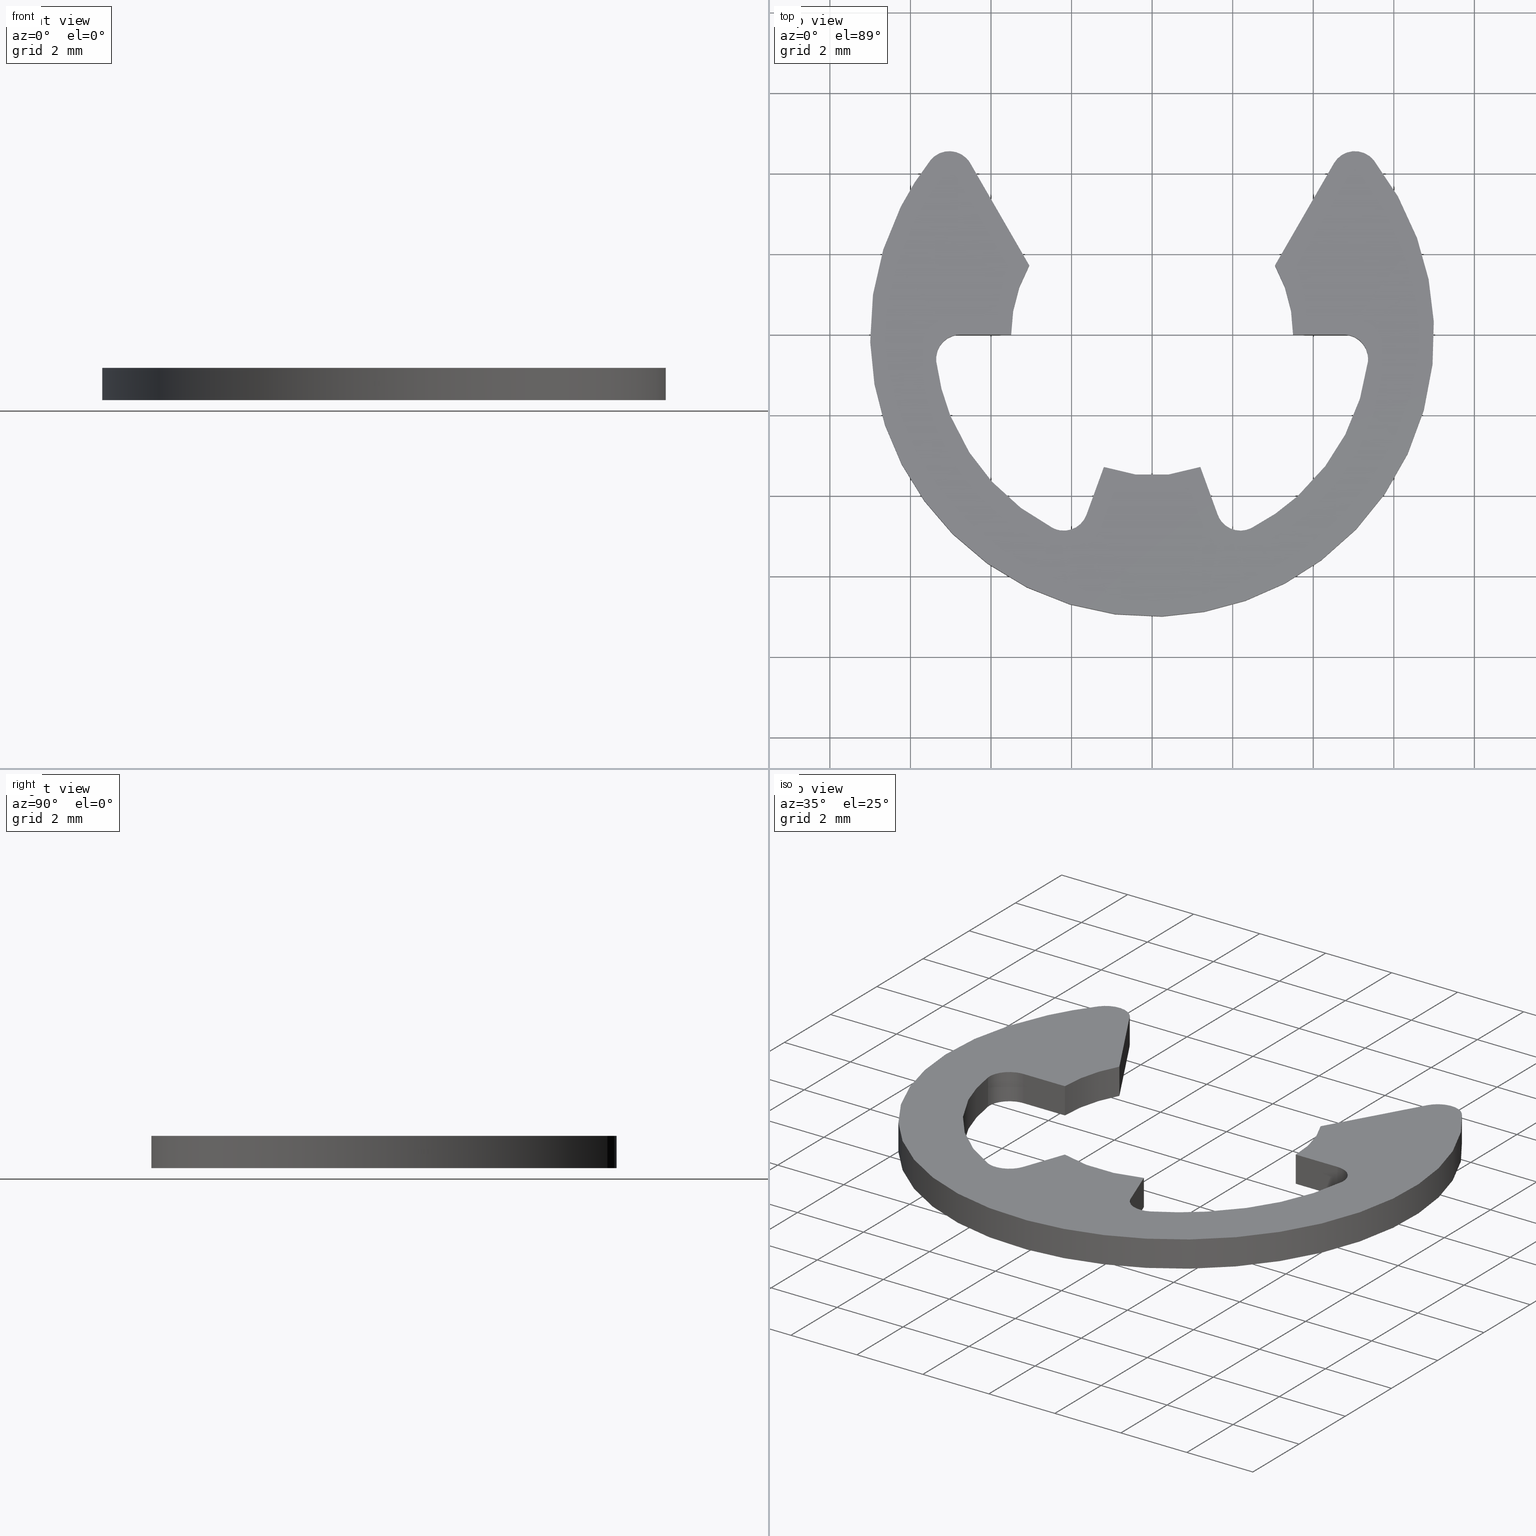
[diagram: canonical four-view strip — front | top / right | iso, engineering-drawing reading convention]
A machine part, canonical four-view strip (front | top / right | iso — engineering-drawing reading convention). The complete STEP part file that produces these views, byte-faithful:
ISO-10303-21;
HEADER;
/****************************************************************
 * Generated by software with PDE/Lib inside                    *
 * PDElib Version 4.4.1-0003, patched  Thursday August 19 11:58 *
 * International Technegroup Inc. (www.iti-oh.com)              *
 ****************************************************************/
FILE_DESCRIPTION((''),'2;1');
FILE_NAME('','2005-04-20T08:53:21',(''),(''),'','CADfix','');
FILE_SCHEMA(('AUTOMOTIVE_DESIGN'));
ENDSEC;
DATA;
#5=APPLICATION_CONTEXT('automotive design');
#6=APPLICATION_PROTOCOL_DEFINITION('Draft International Standard','automotive_design',1998,#5);
#7=PRODUCT_CONTEXT('None',#5,'mechanical');
#8=PRODUCT('retainer','','None',(#7));
#9=PRODUCT_RELATED_PRODUCT_CATEGORY('part','description',(#8));
#10=PRODUCT_DEFINITION_FORMATION('None','None',#8);
#11=PRODUCT_DEFINITION_CONTEXT('part definition',#5,'design');
#12=PRODUCT_DEFINITION('None','None',#10,#11);
#18=(NAMED_UNIT(*)PLANE_ANGLE_UNIT()SI_UNIT($,.RADIAN.));
#19=DIMENSIONAL_EXPONENTS(0.0,0.0,0.0,0.0,0.0,0.0,0.0);
#20=PLANE_ANGLE_MEASURE_WITH_UNIT(PLANE_ANGLE_MEASURE(0.017453292500000),#18);
#24=(CONVERSION_BASED_UNIT('DEGREE',#20)NAMED_UNIT(#19)PLANE_ANGLE_UNIT());
#28=(NAMED_UNIT(*)SI_UNIT($,.STERADIAN.)SOLID_ANGLE_UNIT());
#32=(LENGTH_UNIT()NAMED_UNIT(*)SI_UNIT(.MILLI.,.METRE.));
#34=UNCERTAINTY_MEASURE_WITH_UNIT(LENGTH_MEASURE(0.001000000000000),#32,'DISTANCE_ACCURACY_VALUE','');
#36=(GEOMETRIC_REPRESENTATION_CONTEXT(3)GLOBAL_UNCERTAINTY_ASSIGNED_CONTEXT((#34))GLOBAL_UNIT_ASSIGNED_CONTEXT((#24,#28,#32))REPRESENTATION_CONTEXT('None','None'));
#37=AXIS2_PLACEMENT_3D('',#38,#39,#40);
#38=CARTESIAN_POINT('',(0.0,0.0,0.0));
#39=DIRECTION('',(0.0,0.0,1.0));
#40=DIRECTION('',(1.0,0.0,0.0));
#41=ADVANCED_BREP_SHAPE_REPRESENTATION('',(#37,#941),#36);
#42=PRODUCT_DEFINITION_SHAPE('','',#12);
#43=SHAPE_DEFINITION_REPRESENTATION(#42,#41);
#44=CARTESIAN_POINT('',(-7.680830195951259,-7.577049522920409,0.0));
#45=CARTESIAN_POINT('',(7.680830192763075,-7.577049522920409,0.0));
#46=CARTESIAN_POINT('',(-7.680830195951259,5.129593282450013,0.0));
#47=CARTESIAN_POINT('',(7.680830192763075,5.129593282450013,0.0));
#48=B_SPLINE_SURFACE_WITH_KNOTS('',1,1,((#44,#46),(#45,#47)),.UNSPECIFIED.,.F.,.F.,.U.,(2,2),(2,2),(0.0,15.361660388714339),(0.0,12.706642805370420),.UNSPECIFIED.);
#49=CARTESIAN_POINT('',(-5.505520051458170,4.323106401997531,0.0));
#50=VERTEX_POINT('',#49);
#51=CARTESIAN_POINT('',(-4.514004000000000,4.252556000000000,0.0));
#52=VERTEX_POINT('',#51);
#53=CARTESIAN_POINT('',(-5.505520051458169,4.323106401997530,0.0));
#54=CARTESIAN_POINT('',(-5.308784917364946,4.573650599816963,0.0));
#55=CARTESIAN_POINT('',(-4.991033556247954,4.551041297396017,0.0));
#56=CARTESIAN_POINT('',(-4.673282195130962,4.528431994975072,0.0));
#57=CARTESIAN_POINT('',(-4.514004000000000,4.252556000000000,0.0));
#65=(BOUNDED_CURVE()B_SPLINE_CURVE(2,(#53,#54,#55,#56,#57),.UNSPECIFIED.,.F.,.U.)B_SPLINE_CURVE_WITH_KNOTS((3,2,3),(0.0,0.500000000000000,1.0),.UNSPECIFIED.)CURVE()GEOMETRIC_REPRESENTATION_ITEM()RATIONAL_B_SPLINE_CURVE((1.0,0.883234793916496,1.0,0.883234793916496,1.0))REPRESENTATION_ITEM(''));
#66=EDGE_CURVE('',#50,#52,#65,.T.);
#67=ORIENTED_EDGE('',*,*,#66,.T.);
#68=CARTESIAN_POINT('',(-3.050001544194635,1.716825728025515,0.0));
#69=VERTEX_POINT('',#68);
#70=CARTESIAN_POINT('',(-3.050001544194635,1.716825728025515,0.0));
#71=CARTESIAN_POINT('',(-4.514004000000000,4.252556000000000,0.0));
#72=QUASI_UNIFORM_CURVE('',1,(#70,#71),.UNSPECIFIED.,.F.,.U.);
#73=EDGE_CURVE('',#69,#52,#72,.T.);
#74=ORIENTED_EDGE('',*,*,#73,.F.);
#75=CARTESIAN_POINT('',(-3.500000000000000,0.0,0.0));
#76=VERTEX_POINT('',#75);
#77=CARTESIAN_POINT('',(-3.500000000000000,0.0,0.0));
#78=CARTESIAN_POINT('',(-3.500000000000000,0.917387577322797,0.0));
#79=CARTESIAN_POINT('',(-3.050001544194636,1.716825728025514,0.0));
#87=(BOUNDED_CURVE()B_SPLINE_CURVE(2,(#77,#78,#79),.UNSPECIFIED.,.F.,.U.)CURVE()GEOMETRIC_REPRESENTATION_ITEM()QUASI_UNIFORM_CURVE()RATIONAL_B_SPLINE_CURVE((1.0,0.967323372153035,1.0))REPRESENTATION_ITEM(''));
#88=EDGE_CURVE('',#76,#69,#87,.T.);
#89=ORIENTED_EDGE('',*,*,#88,.F.);
#90=CARTESIAN_POINT('',(-4.762352359916260,0.0,0.0));
#91=VERTEX_POINT('',#90);
#92=CARTESIAN_POINT('',(-4.762352359916260,0.0,0.0));
#93=CARTESIAN_POINT('',(-3.500000000000000,0.0,0.0));
#94=QUASI_UNIFORM_CURVE('',1,(#92,#93),.UNSPECIFIED.,.F.,.U.);
#95=EDGE_CURVE('',#91,#76,#94,.T.);
#96=ORIENTED_EDGE('',*,*,#95,.F.);
#97=CARTESIAN_POINT('',(-5.357646404905800,-0.675000000000000,0.0));
#98=VERTEX_POINT('',#97);
#99=CARTESIAN_POINT('',(-5.357646404905792,-0.674999999999999,0.0));
#100=CARTESIAN_POINT('',(-5.391502622129178,-0.406274606680622,0.0));
#101=CARTESIAN_POINT('',(-5.212352359916260,-0.203137303340311,0.0));
#102=CARTESIAN_POINT('',(-5.033202097703342,0.0,0.0));
#103=CARTESIAN_POINT('',(-4.762352359916260,0.0,0.0));
#111=(BOUNDED_CURVE()B_SPLINE_CURVE(2,(#99,#100,#101,#102,#103),.UNSPECIFIED.,.F.,.U.)B_SPLINE_CURVE_WITH_KNOTS((3,2,3),(0.0,0.500000000000000,1.0),.UNSPECIFIED.)CURVE()GEOMETRIC_REPRESENTATION_ITEM()RATIONAL_B_SPLINE_CURVE((1.0,0.911437827766148,1.0,0.911437827766148,1.0))REPRESENTATION_ITEM(''));
#112=EDGE_CURVE('',#98,#91,#111,.T.);
#113=ORIENTED_EDGE('',*,*,#112,.F.);
#114=CARTESIAN_POINT('',(-2.466716259072880,-4.803676810238750,0.0));
#115=VERTEX_POINT('',#114);
#116=CARTESIAN_POINT('',(-2.466716259072878,-4.803676810238748,0.0));
#117=CARTESIAN_POINT('',(-5.001469554906101,-3.502066103572656,0.0));
#118=CARTESIAN_POINT('',(-5.357646404905796,-0.674999999999999,0.0));
#126=(BOUNDED_CURVE()B_SPLINE_CURVE(2,(#116,#117,#118),.UNSPECIFIED.,.F.,.U.)CURVE()GEOMETRIC_REPRESENTATION_ITEM()QUASI_UNIFORM_CURVE()RATIONAL_B_SPLINE_CURVE((1.0,0.884424314091896,1.0))REPRESENTATION_ITEM(''));
#127=EDGE_CURVE('',#115,#98,#126,.T.);
#128=ORIENTED_EDGE('',*,*,#127,.F.);
#129=CARTESIAN_POINT('',(-1.628820000000000,-4.475144000000000,0.0));
#130=VERTEX_POINT('',#129);
#131=CARTESIAN_POINT('',(-1.628820000000000,-4.475144000000000,0.0));
#132=CARTESIAN_POINT('',(-1.721455040402783,-4.729660935348904,0.0));
#133=CARTESIAN_POINT('',(-1.973615335047506,-4.828531087035394,0.0));
#134=CARTESIAN_POINT('',(-2.225775629692229,-4.927401238721886,0.0));
#135=CARTESIAN_POINT('',(-2.466716259072879,-4.803676810238747,0.0));
#143=(BOUNDED_CURVE()B_SPLINE_CURVE(2,(#131,#132,#133,#134,#135),.UNSPECIFIED.,.F.,.U.)B_SPLINE_CURVE_WITH_KNOTS((3,2,3),(0.0,0.500000000000000,1.0),.UNSPECIFIED.)CURVE()GEOMETRIC_REPRESENTATION_ITEM()RATIONAL_B_SPLINE_CURVE((1.0,0.911437259242175,1.0,0.911437259242175,1.0))REPRESENTATION_ITEM(''));
#144=EDGE_CURVE('',#130,#115,#143,.T.);
#145=ORIENTED_EDGE('',*,*,#144,.F.);
#146=CARTESIAN_POINT('',(-1.197072395923980,-3.288923483287020,0.0));
#147=VERTEX_POINT('',#146);
#148=CARTESIAN_POINT('',(-1.197072395923980,-3.288923483287020,0.0));
#149=CARTESIAN_POINT('',(-1.628820000000000,-4.475144000000000,0.0));
#150=QUASI_UNIFORM_CURVE('',1,(#148,#149),.UNSPECIFIED.,.F.,.U.);
#151=EDGE_CURVE('',#147,#130,#150,.T.);
#152=ORIENTED_EDGE('',*,*,#151,.F.);
#153=CARTESIAN_POINT('',(1.197069000000000,-3.288924999999810,0.0));
#154=VERTEX_POINT('',#153);
#155=CARTESIAN_POINT('',(1.197069000000000,-3.288924999999810,0.0));
#156=CARTESIAN_POINT('',(-0.000001973981110,-3.724622265994098,0.0));
#157=CARTESIAN_POINT('',(-1.197072395923980,-3.288923483287019,0.0));
#165=(BOUNDED_CURVE()B_SPLINE_CURVE(2,(#155,#156,#157),.UNSPECIFIED.,.F.,.U.)CURVE()GEOMETRIC_REPRESENTATION_ITEM()QUASI_UNIFORM_CURVE()RATIONAL_B_SPLINE_CURVE((1.0,0.939692605060815,1.0))REPRESENTATION_ITEM(''));
#166=EDGE_CURVE('',#154,#147,#165,.T.);
#167=ORIENTED_EDGE('',*,*,#166,.F.);
#168=CARTESIAN_POINT('',(1.628819395293825,-4.475147997431360,0.0));
#169=VERTEX_POINT('',#168);
#170=CARTESIAN_POINT('',(1.628819395293825,-4.475147997431360,0.0));
#171=CARTESIAN_POINT('',(1.197069000000000,-3.288924999999810,0.0));
#172=QUASI_UNIFORM_CURVE('',1,(#170,#171),.UNSPECIFIED.,.F.,.U.);
#173=EDGE_CURVE('',#169,#154,#172,.T.);
#174=ORIENTED_EDGE('',*,*,#173,.F.);
#175=CARTESIAN_POINT('',(2.466713181127335,-4.803678390780620,0.0));
#176=VERTEX_POINT('',#175);
#177=CARTESIAN_POINT('',(2.466713181127335,-4.803678390780620,0.0));
#178=CARTESIAN_POINT('',(2.225773561045906,-4.927401743901641,0.0));
#179=CARTESIAN_POINT('',(1.973614424377073,-4.828532444182820,0.0));
#180=CARTESIAN_POINT('',(1.721455287708239,-4.729663144464000,0.0));
#181=CARTESIAN_POINT('',(1.628819395293824,-4.475147997431360,0.0));
#189=(BOUNDED_CURVE()B_SPLINE_CURVE(2,(#177,#178,#179,#180,#181),.UNSPECIFIED.,.F.,.U.)B_SPLINE_CURVE_WITH_KNOTS((3,2,3),(0.0,0.500000000000000,1.0),.UNSPECIFIED.)CURVE()GEOMETRIC_REPRESENTATION_ITEM()RATIONAL_B_SPLINE_CURVE((1.0,0.911438050522378,1.0,0.911438050522378,1.0))REPRESENTATION_ITEM(''));
#190=EDGE_CURVE('',#176,#169,#189,.T.);
#191=ORIENTED_EDGE('',*,*,#190,.F.);
#192=CARTESIAN_POINT('',(5.357645964854310,-0.674999636050790,0.0));
#193=VERTEX_POINT('',#192);
#194=CARTESIAN_POINT('',(5.357645964854310,-0.674999636050790,0.0));
#195=CARTESIAN_POINT('',(5.001469452492112,-3.502068208566773,0.0));
#196=CARTESIAN_POINT('',(2.466713181127333,-4.803678390780618,0.0));
#204=(BOUNDED_CURVE()B_SPLINE_CURVE(2,(#194,#195,#196),.UNSPECIFIED.,.F.,.U.)CURVE()GEOMETRIC_REPRESENTATION_ITEM()QUASI_UNIFORM_CURVE()RATIONAL_B_SPLINE_CURVE((1.0,0.884424151352078,1.0))REPRESENTATION_ITEM(''));
#205=EDGE_CURVE('',#193,#176,#204,.T.);
#206=ORIENTED_EDGE('',*,*,#205,.F.);
#207=CARTESIAN_POINT('',(4.762352000000000,0.0,0.0));
#208=VERTEX_POINT('',#207);
#209=CARTESIAN_POINT('',(4.762352000000000,0.0,0.0));
#210=CARTESIAN_POINT('',(5.033201930716102,0.000000199055792,0.0));
#211=CARTESIAN_POINT('',(5.212352212016909,-0.203137043744975,0.0));
#212=CARTESIAN_POINT('',(5.391502493317716,-0.406274286545742,0.0));
#213=CARTESIAN_POINT('',(5.357645964854310,-0.674999636050790,0.0));
#221=(BOUNDED_CURVE()B_SPLINE_CURVE(2,(#209,#210,#211,#212,#213),.UNSPECIFIED.,.F.,.U.)B_SPLINE_CURVE_WITH_KNOTS((3,2,3),(0.0,0.500000000000000,1.0),.UNSPECIFIED.)CURVE()GEOMETRIC_REPRESENTATION_ITEM()RATIONAL_B_SPLINE_CURVE((1.0,0.911437717864374,1.0,0.911437717864374,1.0))REPRESENTATION_ITEM(''));
#222=EDGE_CURVE('',#208,#193,#221,.T.);
#223=ORIENTED_EDGE('',*,*,#222,.F.);
#224=CARTESIAN_POINT('',(3.500000000000000,8.572244E-016,0.0));
#225=VERTEX_POINT('',#224);
#226=CARTESIAN_POINT('',(3.500000000000000,8.572244E-016,0.0));
#227=CARTESIAN_POINT('',(4.762352000000000,0.0,0.0));
#228=QUASI_UNIFORM_CURVE('',1,(#226,#227),.UNSPECIFIED.,.F.,.U.);
#229=EDGE_CURVE('',#225,#208,#228,.T.);
#230=ORIENTED_EDGE('',*,*,#229,.F.);
#231=CARTESIAN_POINT('',(3.049997000000000,1.716827000000195,0.0));
#232=VERTEX_POINT('',#231);
#233=CARTESIAN_POINT('',(3.049997000000000,1.716827000000195,0.0));
#234=CARTESIAN_POINT('',(3.499998546452678,0.917388542506622,0.0));
#235=CARTESIAN_POINT('',(3.500000000000000,8.572244E-016,0.0));
#243=(BOUNDED_CURVE()B_SPLINE_CURVE(2,(#233,#234,#235),.UNSPECIFIED.,.F.,.U.)CURVE()GEOMETRIC_REPRESENTATION_ITEM()QUASI_UNIFORM_CURVE()RATIONAL_B_SPLINE_CURVE((1.0,0.967323251267172,1.0))REPRESENTATION_ITEM(''));
#244=EDGE_CURVE('',#232,#225,#243,.T.);
#245=ORIENTED_EDGE('',*,*,#244,.F.);
#246=CARTESIAN_POINT('',(4.514004202788870,4.252553770864495,0.0));
#247=VERTEX_POINT('',#246);
#248=CARTESIAN_POINT('',(4.514004202788870,4.252553770864495,0.0));
#249=CARTESIAN_POINT('',(3.049997000000000,1.716827000000195,0.0));
#250=QUASI_UNIFORM_CURVE('',1,(#248,#249),.UNSPECIFIED.,.F.,.U.);
#251=EDGE_CURVE('',#247,#232,#250,.T.);
#252=ORIENTED_EDGE('',*,*,#251,.F.);
#253=CARTESIAN_POINT('',(5.505519803872589,4.323106717300275,0.0));
#254=VERTEX_POINT('',#253);
#255=CARTESIAN_POINT('',(4.514004202788867,4.252553770864496,0.0));
#256=CARTESIAN_POINT('',(4.673281809844327,4.528429733622624,0.0));
#257=CARTESIAN_POINT('',(4.991032795902336,4.551039771132551,0.0));
#258=CARTESIAN_POINT('',(5.308783781960344,4.573649808642479,0.0));
#259=CARTESIAN_POINT('',(5.505519803872589,4.323106717300275,0.0));
#267=(BOUNDED_CURVE()B_SPLINE_CURVE(2,(#255,#256,#257,#258,#259),.UNSPECIFIED.,.F.,.U.)B_SPLINE_CURVE_WITH_KNOTS((3,2,3),(0.0,0.500000000000000,1.0),.UNSPECIFIED.)CURVE()GEOMETRIC_REPRESENTATION_ITEM()RATIONAL_B_SPLINE_CURVE((1.0,0.883234990200231,1.0,0.883234990200231,1.0))REPRESENTATION_ITEM(''));
#268=EDGE_CURVE('',#247,#254,#267,.T.);
#269=ORIENTED_EDGE('',*,*,#268,.T.);
#270=CARTESIAN_POINT('',(5.505519803872588,4.323106717300274,0.0));
#271=CARTESIAN_POINT('',(9.496636180435846,-0.759620054814019,0.0));
#272=CARTESIAN_POINT('',(4.748318226620992,-5.143294082466886,0.0));
#273=CARTESIAN_POINT('',(0.000000272806137,-9.526968110119752,0.0));
#274=CARTESIAN_POINT('',(-4.748317932063014,-5.143294354404462,0.0));
#275=CARTESIAN_POINT('',(-9.496636136932169,-0.759620598689168,0.0));
#276=CARTESIAN_POINT('',(-5.505520051458172,4.323106401997528,0.0));
#284=(BOUNDED_CURVE()B_SPLINE_CURVE(2,(#270,#271,#272,#273,#274,#275,#276),.UNSPECIFIED.,.F.,.U.)B_SPLINE_CURVE_WITH_KNOTS((3,2,2,3),(0.0,0.333333333333333,0.666666666666667,1.0),.UNSPECIFIED.)CURVE()GEOMETRIC_REPRESENTATION_ITEM()RATIONAL_B_SPLINE_CURVE((1.0,0.734756316919382,1.0,0.734756316919382,1.0,0.734756316919382,1.0))REPRESENTATION_ITEM(''));
#285=EDGE_CURVE('',#254,#50,#284,.T.);
#286=ORIENTED_EDGE('',*,*,#285,.T.);
#287=EDGE_LOOP('',(#67,#74,#89,#96,#113,#128,#145,#152,#167,#174,#191,#206,#223,#230,#245,#252,#269,#286));
#288=FACE_OUTER_BOUND('',#287,.T.);
#289=ADVANCED_FACE('',(#288),#48,.F.);
#290=CARTESIAN_POINT('',(-7.680830195951259,-7.577049522920409,0.799988000000099));
#291=CARTESIAN_POINT('',(7.680830192763075,-7.577049522920409,0.799988000000099));
#292=CARTESIAN_POINT('',(-7.680830195951259,5.129593282450013,0.799988000000099));
#293=CARTESIAN_POINT('',(7.680830192763075,5.129593282450013,0.799988000000099));
#294=B_SPLINE_SURFACE_WITH_KNOTS('',1,1,((#290,#292),(#291,#293)),.UNSPECIFIED.,.F.,.F.,.U.,(2,2),(2,2),(0.0,15.361660388714339),(0.0,12.706642805370420),.UNSPECIFIED.);
#295=CARTESIAN_POINT('',(-5.505520051458170,4.323106401997531,0.799988000000140));
#296=VERTEX_POINT('',#295);
#297=CARTESIAN_POINT('',(-4.514004000000000,4.252556000000000,0.799988000000140));
#298=VERTEX_POINT('',#297);
#299=CARTESIAN_POINT('',(-5.505520051458169,4.323106401997530,0.799988000000140));
#300=CARTESIAN_POINT('',(-5.308784917364946,4.573650599816963,0.799988000000140));
#301=CARTESIAN_POINT('',(-4.991033556247954,4.551041297396017,0.799988000000140));
#302=CARTESIAN_POINT('',(-4.673282195130962,4.528431994975072,0.799988000000140));
#303=CARTESIAN_POINT('',(-4.514004000000000,4.252556000000000,0.799988000000140));
#311=(BOUNDED_CURVE()B_SPLINE_CURVE(2,(#299,#300,#301,#302,#303),.UNSPECIFIED.,.F.,.U.)B_SPLINE_CURVE_WITH_KNOTS((3,2,3),(0.0,0.500000000000000,1.0),.UNSPECIFIED.)CURVE()GEOMETRIC_REPRESENTATION_ITEM()RATIONAL_B_SPLINE_CURVE((1.0,0.883234793916496,1.0,0.883234793916496,1.0))REPRESENTATION_ITEM(''));
#312=EDGE_CURVE('',#296,#298,#311,.T.);
#313=ORIENTED_EDGE('',*,*,#312,.F.);
#314=CARTESIAN_POINT('',(5.505519803872589,4.323106717300275,0.799988000000140));
#315=VERTEX_POINT('',#314);
#316=CARTESIAN_POINT('',(5.505519803872588,4.323106717300274,0.799988000000140));
#317=CARTESIAN_POINT('',(9.496636180435846,-0.759620054814019,0.799988000000140));
#318=CARTESIAN_POINT('',(4.748318226620992,-5.143294082466886,0.799988000000140));
#319=CARTESIAN_POINT('',(0.000000272806137,-9.526968110119752,0.799988000000140));
#320=CARTESIAN_POINT('',(-4.748317932063014,-5.143294354404462,0.799988000000140));
#321=CARTESIAN_POINT('',(-9.496636136932169,-0.759620598689168,0.799988000000140));
#322=CARTESIAN_POINT('',(-5.505520051458172,4.323106401997528,0.799988000000140));
#330=(BOUNDED_CURVE()B_SPLINE_CURVE(2,(#316,#317,#318,#319,#320,#321,#322),.UNSPECIFIED.,.F.,.U.)B_SPLINE_CURVE_WITH_KNOTS((3,2,2,3),(0.0,0.333333333333333,0.666666666666667,1.0),.UNSPECIFIED.)CURVE()GEOMETRIC_REPRESENTATION_ITEM()RATIONAL_B_SPLINE_CURVE((1.0,0.734756316919382,1.0,0.734756316919382,1.0,0.734756316919382,1.0))REPRESENTATION_ITEM(''));
#331=EDGE_CURVE('',#315,#296,#330,.T.);
#332=ORIENTED_EDGE('',*,*,#331,.F.);
#333=CARTESIAN_POINT('',(4.514004202788870,4.252553770864495,0.799988000000140));
#334=VERTEX_POINT('',#333);
#335=CARTESIAN_POINT('',(4.514004202788867,4.252553770864496,0.799988000000140));
#336=CARTESIAN_POINT('',(4.673281809844327,4.528429733622624,0.799988000000140));
#337=CARTESIAN_POINT('',(4.991032795902336,4.551039771132551,0.799988000000140));
#338=CARTESIAN_POINT('',(5.308783781960344,4.573649808642479,0.799988000000140));
#339=CARTESIAN_POINT('',(5.505519803872589,4.323106717300275,0.799988000000140));
#347=(BOUNDED_CURVE()B_SPLINE_CURVE(2,(#335,#336,#337,#338,#339),.UNSPECIFIED.,.F.,.U.)B_SPLINE_CURVE_WITH_KNOTS((3,2,3),(0.0,0.500000000000000,1.0),.UNSPECIFIED.)CURVE()GEOMETRIC_REPRESENTATION_ITEM()RATIONAL_B_SPLINE_CURVE((1.0,0.883234990200231,1.0,0.883234990200231,1.0))REPRESENTATION_ITEM(''));
#348=EDGE_CURVE('',#334,#315,#347,.T.);
#349=ORIENTED_EDGE('',*,*,#348,.F.);
#350=CARTESIAN_POINT('',(3.049997000000000,1.716827000000195,0.799988000000140));
#351=VERTEX_POINT('',#350);
#352=CARTESIAN_POINT('',(4.514004202788870,4.252553770864495,0.799988000000140));
#353=CARTESIAN_POINT('',(3.049997000000000,1.716827000000195,0.799988000000140));
#354=QUASI_UNIFORM_CURVE('',1,(#352,#353),.UNSPECIFIED.,.F.,.U.);
#355=EDGE_CURVE('',#334,#351,#354,.T.);
#356=ORIENTED_EDGE('',*,*,#355,.T.);
#357=CARTESIAN_POINT('',(3.500000000000000,8.572244E-016,0.799988000000140));
#358=VERTEX_POINT('',#357);
#359=CARTESIAN_POINT('',(3.049997000000000,1.716827000000195,0.799988000000140));
#360=CARTESIAN_POINT('',(3.499998546452678,0.917388542506622,0.799988000000140));
#361=CARTESIAN_POINT('',(3.500000000000000,8.572244E-016,0.799988000000140));
#369=(BOUNDED_CURVE()B_SPLINE_CURVE(2,(#359,#360,#361),.UNSPECIFIED.,.F.,.U.)CURVE()GEOMETRIC_REPRESENTATION_ITEM()QUASI_UNIFORM_CURVE()RATIONAL_B_SPLINE_CURVE((1.0,0.967323251267172,1.0))REPRESENTATION_ITEM(''));
#370=EDGE_CURVE('',#351,#358,#369,.T.);
#371=ORIENTED_EDGE('',*,*,#370,.T.);
#372=CARTESIAN_POINT('',(4.762352000000000,0.0,0.799988000000140));
#373=VERTEX_POINT('',#372);
#374=CARTESIAN_POINT('',(3.500000000000000,8.572244E-016,0.799988000000140));
#375=CARTESIAN_POINT('',(4.762352000000000,0.0,0.799988000000140));
#376=QUASI_UNIFORM_CURVE('',1,(#374,#375),.UNSPECIFIED.,.F.,.U.);
#377=EDGE_CURVE('',#358,#373,#376,.T.);
#378=ORIENTED_EDGE('',*,*,#377,.T.);
#379=CARTESIAN_POINT('',(5.357645964854310,-0.674999636050790,0.799988000000140));
#380=VERTEX_POINT('',#379);
#381=CARTESIAN_POINT('',(4.762352000000000,0.0,0.799988000000140));
#382=CARTESIAN_POINT('',(5.033201930716102,0.000000199055792,0.799988000000140));
#383=CARTESIAN_POINT('',(5.212352212016909,-0.203137043744975,0.799988000000140));
#384=CARTESIAN_POINT('',(5.391502493317716,-0.406274286545742,0.799988000000140));
#385=CARTESIAN_POINT('',(5.357645964854310,-0.674999636050790,0.799988000000140));
#393=(BOUNDED_CURVE()B_SPLINE_CURVE(2,(#381,#382,#383,#384,#385),.UNSPECIFIED.,.F.,.U.)B_SPLINE_CURVE_WITH_KNOTS((3,2,3),(0.0,0.500000000000000,1.0),.UNSPECIFIED.)CURVE()GEOMETRIC_REPRESENTATION_ITEM()RATIONAL_B_SPLINE_CURVE((1.0,0.911437717864374,1.0,0.911437717864374,1.0))REPRESENTATION_ITEM(''));
#394=EDGE_CURVE('',#373,#380,#393,.T.);
#395=ORIENTED_EDGE('',*,*,#394,.T.);
#396=CARTESIAN_POINT('',(2.466713181127335,-4.803678390780620,0.799988000000140));
#397=VERTEX_POINT('',#396);
#398=CARTESIAN_POINT('',(5.357645964854310,-0.674999636050790,0.799988000000140));
#399=CARTESIAN_POINT('',(5.001469452492112,-3.502068208566773,0.799988000000140));
#400=CARTESIAN_POINT('',(2.466713181127333,-4.803678390780618,0.799988000000140));
#408=(BOUNDED_CURVE()B_SPLINE_CURVE(2,(#398,#399,#400),.UNSPECIFIED.,.F.,.U.)CURVE()GEOMETRIC_REPRESENTATION_ITEM()QUASI_UNIFORM_CURVE()RATIONAL_B_SPLINE_CURVE((1.0,0.884424151352078,1.0))REPRESENTATION_ITEM(''));
#409=EDGE_CURVE('',#380,#397,#408,.T.);
#410=ORIENTED_EDGE('',*,*,#409,.T.);
#411=CARTESIAN_POINT('',(1.628819395293825,-4.475147997431360,0.799988000000140));
#412=VERTEX_POINT('',#411);
#413=CARTESIAN_POINT('',(2.466713181127335,-4.803678390780620,0.799988000000140));
#414=CARTESIAN_POINT('',(2.225773561045906,-4.927401743901641,0.799988000000140));
#415=CARTESIAN_POINT('',(1.973614424377073,-4.828532444182820,0.799988000000140));
#416=CARTESIAN_POINT('',(1.721455287708239,-4.729663144464000,0.799988000000140));
#417=CARTESIAN_POINT('',(1.628819395293824,-4.475147997431360,0.799988000000140));
#425=(BOUNDED_CURVE()B_SPLINE_CURVE(2,(#413,#414,#415,#416,#417),.UNSPECIFIED.,.F.,.U.)B_SPLINE_CURVE_WITH_KNOTS((3,2,3),(0.0,0.500000000000000,1.0),.UNSPECIFIED.)CURVE()GEOMETRIC_REPRESENTATION_ITEM()RATIONAL_B_SPLINE_CURVE((1.0,0.911438050522378,1.0,0.911438050522378,1.0))REPRESENTATION_ITEM(''));
#426=EDGE_CURVE('',#397,#412,#425,.T.);
#427=ORIENTED_EDGE('',*,*,#426,.T.);
#428=CARTESIAN_POINT('',(1.197069000000000,-3.288924999999810,0.799988000000140));
#429=VERTEX_POINT('',#428);
#430=CARTESIAN_POINT('',(1.628819395293825,-4.475147997431360,0.799988000000140));
#431=CARTESIAN_POINT('',(1.197069000000000,-3.288924999999810,0.799988000000140));
#432=QUASI_UNIFORM_CURVE('',1,(#430,#431),.UNSPECIFIED.,.F.,.U.);
#433=EDGE_CURVE('',#412,#429,#432,.T.);
#434=ORIENTED_EDGE('',*,*,#433,.T.);
#435=CARTESIAN_POINT('',(-1.197072395923980,-3.288923483287020,0.799988000000140));
#436=VERTEX_POINT('',#435);
#437=CARTESIAN_POINT('',(1.197069000000000,-3.288924999999810,0.799988000000140));
#438=CARTESIAN_POINT('',(-0.000001973981110,-3.724622265994098,0.799988000000140));
#439=CARTESIAN_POINT('',(-1.197072395923980,-3.288923483287019,0.799988000000140));
#447=(BOUNDED_CURVE()B_SPLINE_CURVE(2,(#437,#438,#439),.UNSPECIFIED.,.F.,.U.)CURVE()GEOMETRIC_REPRESENTATION_ITEM()QUASI_UNIFORM_CURVE()RATIONAL_B_SPLINE_CURVE((1.0,0.939692605060815,1.0))REPRESENTATION_ITEM(''));
#448=EDGE_CURVE('',#429,#436,#447,.T.);
#449=ORIENTED_EDGE('',*,*,#448,.T.);
#450=CARTESIAN_POINT('',(-1.628820000000000,-4.475144000000000,0.799988000000140));
#451=VERTEX_POINT('',#450);
#452=CARTESIAN_POINT('',(-1.197072395923980,-3.288923483287020,0.799988000000140));
#453=CARTESIAN_POINT('',(-1.628820000000000,-4.475144000000000,0.799988000000140));
#454=QUASI_UNIFORM_CURVE('',1,(#452,#453),.UNSPECIFIED.,.F.,.U.);
#455=EDGE_CURVE('',#436,#451,#454,.T.);
#456=ORIENTED_EDGE('',*,*,#455,.T.);
#457=CARTESIAN_POINT('',(-2.466716259072880,-4.803676810238750,0.799988000000140));
#458=VERTEX_POINT('',#457);
#459=CARTESIAN_POINT('',(-1.628820000000000,-4.475144000000000,0.799988000000140));
#460=CARTESIAN_POINT('',(-1.721455040402783,-4.729660935348904,0.799988000000140));
#461=CARTESIAN_POINT('',(-1.973615335047506,-4.828531087035394,0.799988000000140));
#462=CARTESIAN_POINT('',(-2.225775629692229,-4.927401238721886,0.799988000000140));
#463=CARTESIAN_POINT('',(-2.466716259072879,-4.803676810238747,0.799988000000140));
#471=(BOUNDED_CURVE()B_SPLINE_CURVE(2,(#459,#460,#461,#462,#463),.UNSPECIFIED.,.F.,.U.)B_SPLINE_CURVE_WITH_KNOTS((3,2,3),(0.0,0.500000000000000,1.0),.UNSPECIFIED.)CURVE()GEOMETRIC_REPRESENTATION_ITEM()RATIONAL_B_SPLINE_CURVE((1.0,0.911437259242175,1.0,0.911437259242175,1.0))REPRESENTATION_ITEM(''));
#472=EDGE_CURVE('',#451,#458,#471,.T.);
#473=ORIENTED_EDGE('',*,*,#472,.T.);
#474=CARTESIAN_POINT('',(-5.357646404905800,-0.675000000000000,0.799988000000140));
#475=VERTEX_POINT('',#474);
#476=CARTESIAN_POINT('',(-2.466716259072878,-4.803676810238748,0.799988000000140));
#477=CARTESIAN_POINT('',(-5.001469554906101,-3.502066103572656,0.799988000000140));
#478=CARTESIAN_POINT('',(-5.357646404905796,-0.674999999999999,0.799988000000140));
#486=(BOUNDED_CURVE()B_SPLINE_CURVE(2,(#476,#477,#478),.UNSPECIFIED.,.F.,.U.)CURVE()GEOMETRIC_REPRESENTATION_ITEM()QUASI_UNIFORM_CURVE()RATIONAL_B_SPLINE_CURVE((1.0,0.884424314091896,1.0))REPRESENTATION_ITEM(''));
#487=EDGE_CURVE('',#458,#475,#486,.T.);
#488=ORIENTED_EDGE('',*,*,#487,.T.);
#489=CARTESIAN_POINT('',(-4.762352359916260,0.0,0.799988000000140));
#490=VERTEX_POINT('',#489);
#491=CARTESIAN_POINT('',(-5.357646404905792,-0.674999999999999,0.799988000000140));
#492=CARTESIAN_POINT('',(-5.391502622129178,-0.406274606680622,0.799988000000140));
#493=CARTESIAN_POINT('',(-5.212352359916260,-0.203137303340311,0.799988000000140));
#494=CARTESIAN_POINT('',(-5.033202097703342,0.0,0.799988000000140));
#495=CARTESIAN_POINT('',(-4.762352359916260,0.0,0.799988000000140));
#503=(BOUNDED_CURVE()B_SPLINE_CURVE(2,(#491,#492,#493,#494,#495),.UNSPECIFIED.,.F.,.U.)B_SPLINE_CURVE_WITH_KNOTS((3,2,3),(0.0,0.500000000000000,1.0),.UNSPECIFIED.)CURVE()GEOMETRIC_REPRESENTATION_ITEM()RATIONAL_B_SPLINE_CURVE((1.0,0.911437827766148,1.0,0.911437827766148,1.0))REPRESENTATION_ITEM(''));
#504=EDGE_CURVE('',#475,#490,#503,.T.);
#505=ORIENTED_EDGE('',*,*,#504,.T.);
#506=CARTESIAN_POINT('',(-3.500000000000000,0.0,0.799988000000140));
#507=VERTEX_POINT('',#506);
#508=CARTESIAN_POINT('',(-4.762352359916260,0.0,0.799988000000140));
#509=CARTESIAN_POINT('',(-3.500000000000000,0.0,0.799988000000140));
#510=QUASI_UNIFORM_CURVE('',1,(#508,#509),.UNSPECIFIED.,.F.,.U.);
#511=EDGE_CURVE('',#490,#507,#510,.T.);
#512=ORIENTED_EDGE('',*,*,#511,.T.);
#513=CARTESIAN_POINT('',(-3.050001544194635,1.716825728025515,0.799988000000140));
#514=VERTEX_POINT('',#513);
#515=CARTESIAN_POINT('',(-3.500000000000000,0.0,0.799988000000140));
#516=CARTESIAN_POINT('',(-3.500000000000000,0.917387577322797,0.799988000000140));
#517=CARTESIAN_POINT('',(-3.050001544194636,1.716825728025514,0.799988000000140));
#525=(BOUNDED_CURVE()B_SPLINE_CURVE(2,(#515,#516,#517),.UNSPECIFIED.,.F.,.U.)CURVE()GEOMETRIC_REPRESENTATION_ITEM()QUASI_UNIFORM_CURVE()RATIONAL_B_SPLINE_CURVE((1.0,0.967323372153035,1.0))REPRESENTATION_ITEM(''));
#526=EDGE_CURVE('',#507,#514,#525,.T.);
#527=ORIENTED_EDGE('',*,*,#526,.T.);
#528=CARTESIAN_POINT('',(-3.050001544194635,1.716825728025515,0.799988000000140));
#529=CARTESIAN_POINT('',(-4.514004000000000,4.252556000000000,0.799988000000140));
#530=QUASI_UNIFORM_CURVE('',1,(#528,#529),.UNSPECIFIED.,.F.,.U.);
#531=EDGE_CURVE('',#514,#298,#530,.T.);
#532=ORIENTED_EDGE('',*,*,#531,.T.);
#533=EDGE_LOOP('',(#313,#332,#349,#356,#371,#378,#395,#410,#427,#434,#449,#456,#473,#488,#505,#512,#527,#532));
#534=FACE_OUTER_BOUND('',#533,.T.);
#535=ADVANCED_FACE('',(#534),#294,.T.);
#536=CARTESIAN_POINT('',(-5.390467714425435,4.465742695200544,0.819987700000144));
#537=CARTESIAN_POINT('',(-5.390467714425435,4.465742695200544,-0.020499692500004));
#538=CARTESIAN_POINT('',(-9.628299296236557,-0.649620163809736,0.819987700000144));
#539=CARTESIAN_POINT('',(-9.628299296236557,-0.649620163809736,-0.020499692500004));
#540=CARTESIAN_POINT('',(-4.741737832472927,-5.149361351477960,0.819987700000144));
#541=CARTESIAN_POINT('',(-4.741737832472927,-5.149361351477960,-0.020499692500004));
#542=CARTESIAN_POINT('',(0.144823631290703,-9.649102539146183,0.819987700000144));
#543=CARTESIAN_POINT('',(0.144823631290703,-9.649102539146183,-0.020499692500004));
#544=CARTESIAN_POINT('',(4.894140946993804,-5.004736195940656,0.819987700000144));
#545=CARTESIAN_POINT('',(4.894140946993804,-5.004736195940656,-0.020499692500004));
#546=CARTESIAN_POINT('',(9.643458262696901,-0.360369852735130,0.819987700000144));
#547=CARTESIAN_POINT('',(9.643458262696901,-0.360369852735130,-0.020499692500004));
#548=CARTESIAN_POINT('',(5.254016925370260,4.625506042361502,0.819987700000144));
#549=CARTESIAN_POINT('',(5.254016925370260,4.625506042361502,-0.020499692500004));
#557=(BOUNDED_SURFACE()B_SPLINE_SURFACE(1,2,((#536,#538,#540,#542,#544,#546,#548),(#537,#539,#541,#543,#545,#547,#549)),.UNSPECIFIED.,.F.,.F.,.U.)B_SPLINE_SURFACE_WITH_KNOTS((2,2),(3,2,2,3),(0.0,1.0),(0.0,11.170867287264141,22.341734574528282,33.512601861792419),.UNSPECIFIED.)GEOMETRIC_REPRESENTATION_ITEM()RATIONAL_B_SPLINE_SURFACE(((1.0,0.725374371012288,1.0,0.725374371012288,1.0,0.725374371012288,1.0),(1.0,0.725374371012288,1.0,0.725374371012288,1.0,0.725374371012288,1.0)))REPRESENTATION_ITEM('')SURFACE());
#558=ORIENTED_EDGE('',*,*,#285,.F.);
#559=CARTESIAN_POINT('',(5.505519803872589,4.323106717300275,0.799988000000140));
#560=CARTESIAN_POINT('',(5.505519803872589,4.323106717300275,0.0));
#561=QUASI_UNIFORM_CURVE('',1,(#559,#560),.UNSPECIFIED.,.F.,.U.);
#562=EDGE_CURVE('',#315,#254,#561,.T.);
#563=ORIENTED_EDGE('',*,*,#562,.F.);
#564=ORIENTED_EDGE('',*,*,#331,.T.);
#565=CARTESIAN_POINT('',(-5.505520051458170,4.323106401997531,0.799988000000140));
#566=CARTESIAN_POINT('',(-5.505520051458170,4.323106401997531,0.0));
#567=QUASI_UNIFORM_CURVE('',1,(#565,#566),.UNSPECIFIED.,.F.,.U.);
#568=EDGE_CURVE('',#296,#50,#567,.T.);
#569=ORIENTED_EDGE('',*,*,#568,.T.);
#570=EDGE_LOOP('',(#558,#563,#564,#569));
#571=FACE_OUTER_BOUND('',#570,.T.);
#572=ADVANCED_FACE('',(#571),#557,.T.);
#573=CARTESIAN_POINT('',(5.515933645832221,4.309445956523111,0.819987700000144));
#574=CARTESIAN_POINT('',(5.515933645832221,4.309445956523111,-0.020499692500004));
#575=CARTESIAN_POINT('',(4.921964020895551,5.112152325618832,0.819987700000144));
#576=CARTESIAN_POINT('',(4.921964020895551,5.112152325618832,-0.020499692500004));
#577=CARTESIAN_POINT('',(4.492068212596321,4.210860461492125,0.819987700000144));
#578=CARTESIAN_POINT('',(4.492068212596321,4.210860461492125,-0.020499692500004));
#586=(BOUNDED_SURFACE()B_SPLINE_SURFACE(1,2,((#573,#575,#577),(#574,#576,#578)),.UNSPECIFIED.,.F.,.F.,.U.)GEOMETRIC_REPRESENTATION_ITEM()QUASI_UNIFORM_SURFACE()RATIONAL_B_SPLINE_SURFACE(((1.0,0.515038074910054,1.0),(1.0,0.515038074910054,1.0)))REPRESENTATION_ITEM('')SURFACE());
#587=ORIENTED_EDGE('',*,*,#268,.F.);
#588=CARTESIAN_POINT('',(4.514004202788870,4.252553770864495,0.799988000000140));
#589=CARTESIAN_POINT('',(4.514004202788870,4.252553770864495,0.0));
#590=QUASI_UNIFORM_CURVE('',1,(#588,#589),.UNSPECIFIED.,.F.,.U.);
#591=EDGE_CURVE('',#334,#247,#590,.T.);
#592=ORIENTED_EDGE('',*,*,#591,.F.);
#593=ORIENTED_EDGE('',*,*,#348,.T.);
#594=ORIENTED_EDGE('',*,*,#562,.T.);
#595=EDGE_LOOP('',(#587,#592,#593,#594));
#596=FACE_OUTER_BOUND('',#595,.T.);
#597=ADVANCED_FACE('',(#596),#586,.T.);
#598=CARTESIAN_POINT('',(2.976870015023196,1.590167448640601,-0.039959396191356));
#599=CARTESIAN_POINT('',(4.587128648965627,4.379214969371652,-0.039959396191356));
#600=CARTESIAN_POINT('',(2.976870015023196,1.590167448640601,0.839947360429246));
#601=CARTESIAN_POINT('',(4.587128648965627,4.379214969371652,0.839947360429246));
#602=B_SPLINE_SURFACE_WITH_KNOTS('',1,1,((#598,#600),(#599,#601)),.UNSPECIFIED.,.F.,.F.,.U.,(2,2),(2,2),(0.0,3.220515322286508),(0.041708337925747,0.958291624821350),.UNSPECIFIED.);
#603=ORIENTED_EDGE('',*,*,#251,.T.);
#604=CARTESIAN_POINT('',(3.049997000000000,1.716827000000195,0.799988000000140));
#605=CARTESIAN_POINT('',(3.049997000000000,1.716827000000195,0.0));
#606=QUASI_UNIFORM_CURVE('',1,(#604,#605),.UNSPECIFIED.,.F.,.U.);
#607=EDGE_CURVE('',#351,#232,#606,.T.);
#608=ORIENTED_EDGE('',*,*,#607,.F.);
#609=ORIENTED_EDGE('',*,*,#355,.F.);
#610=ORIENTED_EDGE('',*,*,#591,.T.);
#611=EDGE_LOOP('',(#603,#608,#609,#610));
#612=FACE_OUTER_BOUND('',#611,.T.);
#613=ADVANCED_FACE('',(#612),#602,.F.);
#614=CARTESIAN_POINT('',(3.499866730724598,-0.030542874244305,0.819987700000144));
#615=CARTESIAN_POINT('',(3.499866730724598,-0.030542874244305,-0.020499692500004));
#616=CARTESIAN_POINT('',(3.508431310535529,0.950860765215160,0.819987700000143));
#617=CARTESIAN_POINT('',(3.508431310535529,0.950860765215160,-0.020499692500004));
#618=CARTESIAN_POINT('',(3.005476032993431,1.793631460223104,0.819987700000144));
#619=CARTESIAN_POINT('',(3.005476032993431,1.793631460223104,-0.020499692500004));
#627=(BOUNDED_SURFACE()B_SPLINE_SURFACE(1,2,((#614,#616,#618),(#615,#617,#619)),.UNSPECIFIED.,.F.,.F.,.U.)B_SPLINE_SURFACE_WITH_KNOTS((2,2),(3,3),(0.0,1.0),(0.0,1.925740666483591),.UNSPECIFIED.)GEOMETRIC_REPRESENTATION_ITEM()RATIONAL_B_SPLINE_SURFACE(((1.0,0.960930706138172,0.995994481501433),(1.0,0.960930706138172,0.995994481501433)))REPRESENTATION_ITEM('')SURFACE());
#628=ORIENTED_EDGE('',*,*,#244,.T.);
#629=CARTESIAN_POINT('',(3.500000000000000,8.572244E-016,0.799988000000140));
#630=CARTESIAN_POINT('',(3.500000000000000,8.572244E-016,0.0));
#631=QUASI_UNIFORM_CURVE('',1,(#629,#630),.UNSPECIFIED.,.F.,.U.);
#632=EDGE_CURVE('',#358,#225,#631,.T.);
#633=ORIENTED_EDGE('',*,*,#632,.F.);
#634=ORIENTED_EDGE('',*,*,#370,.F.);
#635=ORIENTED_EDGE('',*,*,#607,.T.);
#636=EDGE_LOOP('',(#628,#633,#634,#635));
#637=FACE_OUTER_BOUND('',#636,.T.);
#638=ADVANCED_FACE('',(#637),#627,.F.);
#639=CARTESIAN_POINT('',(3.436945520046683,0.0,-0.039959396191356));
#640=CARTESIAN_POINT('',(3.436945520046683,0.0,0.839947360429246));
#641=CARTESIAN_POINT('',(4.825406513812236,0.0,-0.039959396191356));
#642=CARTESIAN_POINT('',(4.825406513812236,0.0,0.839947360429246));
#643=B_SPLINE_SURFACE_WITH_KNOTS('',1,1,((#639,#641),(#640,#642)),.UNSPECIFIED.,.F.,.F.,.U.,(2,2),(2,2),(0.041708337925747,0.958291624821350),(0.041708334948495,0.958291687403247),.UNSPECIFIED.);
#644=ORIENTED_EDGE('',*,*,#229,.T.);
#645=CARTESIAN_POINT('',(4.762352000000000,0.0,0.799988000000140));
#646=CARTESIAN_POINT('',(4.762352000000000,0.0,0.0));
#647=QUASI_UNIFORM_CURVE('',1,(#645,#646),.UNSPECIFIED.,.F.,.U.);
#648=EDGE_CURVE('',#373,#208,#647,.T.);
#649=ORIENTED_EDGE('',*,*,#648,.F.);
#650=ORIENTED_EDGE('',*,*,#377,.F.);
#651=ORIENTED_EDGE('',*,*,#632,.T.);
#652=EDGE_LOOP('',(#644,#649,#650,#651));
#653=FACE_OUTER_BOUND('',#652,.T.);
#654=ADVANCED_FACE('',(#653),#643,.F.);
#655=CARTESIAN_POINT('',(5.355478684707391,-0.690556914551979,0.819987700000144));
#656=CARTESIAN_POINT('',(5.355478684707391,-0.690556914551979,-0.020499692500004));
#657=CARTESIAN_POINT('',(5.467308395889482,0.041893541858241,0.819987700000143));
#658=CARTESIAN_POINT('',(5.467308395889482,0.041893541858241,-0.020499692500004));
#659=CARTESIAN_POINT('',(4.727613034959915,-0.001005507290731,0.819987700000144));
#660=CARTESIAN_POINT('',(4.727613034959915,-0.001005507290731,-0.020499692500004));
#668=(BOUNDED_SURFACE()B_SPLINE_SURFACE(1,2,((#655,#657,#659),(#656,#658,#660)),.UNSPECIFIED.,.F.,.F.,.U.)GEOMETRIC_REPRESENTATION_ITEM()QUASI_UNIFORM_SURFACE()RATIONAL_B_SPLINE_SURFACE(((1.0,0.629320391049837,1.0),(1.0,0.629320391049837,1.0)))REPRESENTATION_ITEM('')SURFACE());
#669=ORIENTED_EDGE('',*,*,#222,.T.);
#670=CARTESIAN_POINT('',(5.357645964854310,-0.674999636050790,0.799988000000140));
#671=CARTESIAN_POINT('',(5.357645964854310,-0.674999636050790,0.0));
#672=QUASI_UNIFORM_CURVE('',1,(#670,#671),.UNSPECIFIED.,.F.,.U.);
#673=EDGE_CURVE('',#380,#193,#672,.T.);
#674=ORIENTED_EDGE('',*,*,#673,.F.);
#675=ORIENTED_EDGE('',*,*,#394,.F.);
#676=ORIENTED_EDGE('',*,*,#648,.T.);
#677=EDGE_LOOP('',(#669,#674,#675,#676));
#678=FACE_OUTER_BOUND('',#677,.T.);
#679=ADVANCED_FACE('',(#678),#668,.F.);
#680=CARTESIAN_POINT('',(2.340122259204579,-4.866603313603363,0.819987700000144));
#681=CARTESIAN_POINT('',(2.340122259204579,-4.866603313603363,-0.020499692500004));
#682=CARTESIAN_POINT('',(5.138662298081947,-3.520916102988454,0.819987700000144));
#683=CARTESIAN_POINT('',(5.138662298081947,-3.520916102988454,-0.020499692500004));
#684=CARTESIAN_POINT('',(5.383226425182964,-0.425291964668755,0.819987700000144));
#685=CARTESIAN_POINT('',(5.383226425182964,-0.425291964668755,-0.020499692500004));
#693=(BOUNDED_SURFACE()B_SPLINE_SURFACE(1,2,((#680,#682,#684),(#681,#683,#685)),.UNSPECIFIED.,.F.,.F.,.U.)B_SPLINE_SURFACE_WITH_KNOTS((2,2),(3,3),(0.0,1.0),(0.0,5.767716693920538),.UNSPECIFIED.)GEOMETRIC_REPRESENTATION_ITEM()RATIONAL_B_SPLINE_SURFACE(((1.0,0.866487925245807,0.999078150609594),(1.0,0.866487925245807,0.999078150609594)))REPRESENTATION_ITEM('')SURFACE());
#694=ORIENTED_EDGE('',*,*,#205,.T.);
#695=CARTESIAN_POINT('',(2.466713181127335,-4.803678390780620,0.799988000000140));
#696=CARTESIAN_POINT('',(2.466713181127335,-4.803678390780620,0.0));
#697=QUASI_UNIFORM_CURVE('',1,(#695,#696),.UNSPECIFIED.,.F.,.U.);
#698=EDGE_CURVE('',#397,#176,#697,.T.);
#699=ORIENTED_EDGE('',*,*,#698,.F.);
#700=ORIENTED_EDGE('',*,*,#409,.F.);
#701=ORIENTED_EDGE('',*,*,#673,.T.);
#702=EDGE_LOOP('',(#694,#699,#700,#701));
#703=FACE_OUTER_BOUND('',#702,.T.);
#704=ADVANCED_FACE('',(#703),#693,.F.);
#705=CARTESIAN_POINT('',(1.620404801210219,-4.450359389816763,0.819987700000144));
#706=CARTESIAN_POINT('',(1.620404801210219,-4.450359389816763,-0.020499692500004));
#707=CARTESIAN_POINT('',(1.847228088965035,-5.169751344340161,0.819987700000144));
#708=CARTESIAN_POINT('',(1.847228088965035,-5.169751344340161,-0.020499692500004));
#709=CARTESIAN_POINT('',(2.497157936569789,-4.786913544099170,0.819987700000144));
#710=CARTESIAN_POINT('',(2.497157936569789,-4.786913544099170,-0.020499692500004));
#718=(BOUNDED_SURFACE()B_SPLINE_SURFACE(1,2,((#705,#707,#709),(#706,#708,#710)),.UNSPECIFIED.,.F.,.F.,.U.)GEOMETRIC_REPRESENTATION_ITEM()QUASI_UNIFORM_SURFACE()RATIONAL_B_SPLINE_SURFACE(((1.0,0.622514636637620,1.0),(1.0,0.622514636637620,1.0)))REPRESENTATION_ITEM('')SURFACE());
#719=ORIENTED_EDGE('',*,*,#190,.T.);
#720=CARTESIAN_POINT('',(1.628819395293825,-4.475147997431360,0.799988000000140));
#721=CARTESIAN_POINT('',(1.628819395293825,-4.475147997431360,0.0));
#722=QUASI_UNIFORM_CURVE('',1,(#720,#721),.UNSPECIFIED.,.F.,.U.);
#723=EDGE_CURVE('',#412,#169,#722,.T.);
#724=ORIENTED_EDGE('',*,*,#723,.F.);
#725=ORIENTED_EDGE('',*,*,#426,.F.);
#726=ORIENTED_EDGE('',*,*,#698,.T.);
#727=EDGE_LOOP('',(#719,#724,#725,#726));
#728=FACE_OUTER_BOUND('',#727,.T.);
#729=ADVANCED_FACE('',(#728),#718,.F.);
#730=CARTESIAN_POINT('',(1.175503114932291,-3.229673086669572,-0.039959396191356));
#731=CARTESIAN_POINT('',(1.650384024204890,-4.534400548123760,-0.039959396191356));
#732=CARTESIAN_POINT('',(1.175503114932291,-3.229673086669573,0.839947360429246));
#733=CARTESIAN_POINT('',(1.650384024204890,-4.534400548123760,0.839947360429246));
#734=B_SPLINE_SURFACE_WITH_KNOTS('',1,1,((#730,#732),(#731,#733)),.UNSPECIFIED.,.F.,.F.,.U.,(2,2),(2,2),(0.041708297703043,0.958291814055666),(0.041708337925747,0.958291624821350),.UNSPECIFIED.);
#735=ORIENTED_EDGE('',*,*,#173,.T.);
#736=CARTESIAN_POINT('',(1.197069000000000,-3.288924999999810,0.799988000000140));
#737=CARTESIAN_POINT('',(1.197069000000000,-3.288924999999810,0.0));
#738=QUASI_UNIFORM_CURVE('',1,(#736,#737),.UNSPECIFIED.,.F.,.U.);
#739=EDGE_CURVE('',#429,#154,#738,.T.);
#740=ORIENTED_EDGE('',*,*,#739,.F.);
#741=ORIENTED_EDGE('',*,*,#433,.F.);
#742=ORIENTED_EDGE('',*,*,#723,.T.);
#743=EDGE_LOOP('',(#735,#740,#741,#742));
#744=FACE_OUTER_BOUND('',#743,.T.);
#745=ADVANCED_FACE('',(#744),#734,.F.);
#746=CARTESIAN_POINT('',(-1.282756169122006,-3.256460749123107,0.819987700000143));
#747=CARTESIAN_POINT('',(-1.282756169122006,-3.256460749123107,-0.020499692500004));
#748=CARTESIAN_POINT('',(0.015053564370847,-3.767682461969741,0.819987700000144));
#749=CARTESIAN_POINT('',(0.015053564370847,-3.767682461969741,-0.020499692500004));
#750=CARTESIAN_POINT('',(1.308736812903076,-3.246106583979073,0.819987700000143));
#751=CARTESIAN_POINT('',(1.308736812903076,-3.246106583979073,-0.020499692500004));
#759=(BOUNDED_SURFACE()B_SPLINE_SURFACE(1,2,((#746,#748,#750),(#747,#749,#751)),.UNSPECIFIED.,.F.,.F.,.U.)B_SPLINE_SURFACE_WITH_KNOTS((2,2),(3,3),(0.0,1.0),(0.0,2.686969688185086),.UNSPECIFIED.)GEOMETRIC_REPRESENTATION_ITEM()RATIONAL_B_SPLINE_SURFACE(((1.0,0.926549369171439,0.994847609496711),(1.0,0.926549369171439,0.994847609496711)))REPRESENTATION_ITEM('')SURFACE());
#760=ORIENTED_EDGE('',*,*,#166,.T.);
#761=CARTESIAN_POINT('',(-1.197072395923980,-3.288923483287020,0.799988000000140));
#762=CARTESIAN_POINT('',(-1.197072395923980,-3.288923483287020,0.0));
#763=QUASI_UNIFORM_CURVE('',1,(#761,#762),.UNSPECIFIED.,.F.,.U.);
#764=EDGE_CURVE('',#436,#147,#763,.T.);
#765=ORIENTED_EDGE('',*,*,#764,.F.);
#766=ORIENTED_EDGE('',*,*,#448,.F.);
#767=ORIENTED_EDGE('',*,*,#739,.T.);
#768=EDGE_LOOP('',(#760,#765,#766,#767));
#769=FACE_OUTER_BOUND('',#768,.T.);
#770=ADVANCED_FACE('',(#769),#759,.F.);
#771=CARTESIAN_POINT('',(-1.650385841428908,-4.534395581020341,-0.039959396191356));
#772=CARTESIAN_POINT('',(-1.175504788079297,-3.229672401063002,-0.039959396191356));
#773=CARTESIAN_POINT('',(-1.650385841428908,-4.534395581020341,0.839947360429246));
#774=CARTESIAN_POINT('',(-1.175504788079297,-3.229672401063002,0.839947360429246));
#775=B_SPLINE_SURFACE_WITH_KNOTS('',1,1,((#771,#773),(#772,#774)),.UNSPECIFIED.,.F.,.F.,.U.,(2,2),(2,2),(0.041708405353129,0.958291684053838),(0.041708337925747,0.958291624821350),.UNSPECIFIED.);
#776=ORIENTED_EDGE('',*,*,#151,.T.);
#777=CARTESIAN_POINT('',(-1.628820000000000,-4.475144000000000,0.799988000000140));
#778=CARTESIAN_POINT('',(-1.628820000000000,-4.475144000000000,0.0));
#779=QUASI_UNIFORM_CURVE('',1,(#777,#778),.UNSPECIFIED.,.F.,.U.);
#780=EDGE_CURVE('',#451,#130,#779,.T.);
#781=ORIENTED_EDGE('',*,*,#780,.F.);
#782=ORIENTED_EDGE('',*,*,#455,.F.);
#783=ORIENTED_EDGE('',*,*,#764,.T.);
#784=EDGE_LOOP('',(#776,#781,#782,#783));
#785=FACE_OUTER_BOUND('',#784,.T.);
#786=ADVANCED_FACE('',(#785),#775,.F.);
#787=CARTESIAN_POINT('',(-2.471363540318496,-4.801264721761762,0.819987700000143));
#788=CARTESIAN_POINT('',(-2.471363540318496,-4.801264721761762,-0.020499692500004));
#789=CARTESIAN_POINT('',(-1.826808976831164,-5.139387447365621,0.819987700000143));
#790=CARTESIAN_POINT('',(-1.826808976831164,-5.139387447365621,-0.020499692500004));
#791=CARTESIAN_POINT('',(-1.617885326761385,-4.442158309044761,0.819987700000143));
#792=CARTESIAN_POINT('',(-1.617885326761385,-4.442158309044761,-0.020499692500004));
#800=(BOUNDED_SURFACE()B_SPLINE_SURFACE(1,2,((#787,#789,#791),(#788,#790,#792)),.UNSPECIFIED.,.F.,.F.,.U.)GEOMETRIC_REPRESENTATION_ITEM()QUASI_UNIFORM_SURFACE()RATIONAL_B_SPLINE_SURFACE(((1.0,0.636078220277764,1.0),(1.0,0.636078220277764,1.0)))REPRESENTATION_ITEM('')SURFACE());
#801=ORIENTED_EDGE('',*,*,#144,.T.);
#802=CARTESIAN_POINT('',(-2.466716259072880,-4.803676810238750,0.799988000000140));
#803=CARTESIAN_POINT('',(-2.466716259072880,-4.803676810238750,0.0));
#804=QUASI_UNIFORM_CURVE('',1,(#802,#803),.UNSPECIFIED.,.F.,.U.);
#805=EDGE_CURVE('',#458,#115,#804,.T.);
#806=ORIENTED_EDGE('',*,*,#805,.F.);
#807=ORIENTED_EDGE('',*,*,#472,.F.);
#808=ORIENTED_EDGE('',*,*,#780,.T.);
#809=EDGE_LOOP('',(#801,#806,#807,#808));
#810=FACE_OUTER_BOUND('',#809,.T.);
#811=ADVANCED_FACE('',(#810),#800,.F.);
#812=CARTESIAN_POINT('',(-5.363332813608844,-0.628220606528174,0.819987700000144));
#813=CARTESIAN_POINT('',(-5.363332813608844,-0.628220606528174,-0.020499692500004));
#814=CARTESIAN_POINT('',(-5.009290343913365,-3.650801488780249,0.819987700000143));
#815=CARTESIAN_POINT('',(-5.009290343913365,-3.650801488780249,-0.020499692500004));
#816=CARTESIAN_POINT('',(-2.240301085564364,-4.913354357871933,0.819987700000144));
#817=CARTESIAN_POINT('',(-2.240301085564364,-4.913354357871933,-0.020499692500004));
#825=(BOUNDED_SURFACE()B_SPLINE_SURFACE(1,2,((#812,#814,#816),(#813,#815,#817)),.UNSPECIFIED.,.F.,.F.,.U.)B_SPLINE_SURFACE_WITH_KNOTS((2,2),(3,3),(0.0,1.0),(0.0,5.667467388099007),.UNSPECIFIED.)GEOMETRIC_REPRESENTATION_ITEM()RATIONAL_B_SPLINE_SURFACE(((1.0,0.870796448895474,0.999121490952759),(1.0,0.870796448895474,0.999121490952759)))REPRESENTATION_ITEM('')SURFACE());
#826=ORIENTED_EDGE('',*,*,#127,.T.);
#827=CARTESIAN_POINT('',(-5.357646404905800,-0.675000000000000,0.799988000000140));
#828=CARTESIAN_POINT('',(-5.357646404905800,-0.675000000000000,0.0));
#829=QUASI_UNIFORM_CURVE('',1,(#827,#828),.UNSPECIFIED.,.F.,.U.);
#830=EDGE_CURVE('',#475,#98,#829,.T.);
#831=ORIENTED_EDGE('',*,*,#830,.F.);
#832=ORIENTED_EDGE('',*,*,#487,.F.);
#833=ORIENTED_EDGE('',*,*,#805,.T.);
#834=EDGE_LOOP('',(#826,#831,#832,#833));
#835=FACE_OUTER_BOUND('',#834,.T.);
#836=ADVANCED_FACE('',(#835),#825,.F.);
#837=CARTESIAN_POINT('',(-4.746646190931536,-0.000205605014666,0.819987700000144));
#838=CARTESIAN_POINT('',(-4.746646190931536,-0.000205605014666,-0.020499692500004));
#839=CARTESIAN_POINT('',(-5.487330583804587,0.019189898404629,0.819987700000143));
#840=CARTESIAN_POINT('',(-5.487330583804587,0.019189898404629,-0.020499692500004));
#841=CARTESIAN_POINT('',(-5.352305304454633,-0.709341315295289,0.819987700000144));
#842=CARTESIAN_POINT('',(-5.352305304454633,-0.709341315295289,-0.020499692500004));
#850=(BOUNDED_SURFACE()B_SPLINE_SURFACE(1,2,((#837,#839,#841),(#838,#840,#842)),.UNSPECIFIED.,.F.,.F.,.U.)GEOMETRIC_REPRESENTATION_ITEM()QUASI_UNIFORM_SURFACE()RATIONAL_B_SPLINE_SURFACE(((1.0,0.629320391049837,1.0),(1.0,0.629320391049837,1.0)))REPRESENTATION_ITEM('')SURFACE());
#851=ORIENTED_EDGE('',*,*,#112,.T.);
#852=CARTESIAN_POINT('',(-4.762352359916260,0.0,0.799988000000140));
#853=CARTESIAN_POINT('',(-4.762352359916260,0.0,0.0));
#854=QUASI_UNIFORM_CURVE('',1,(#852,#853),.UNSPECIFIED.,.F.,.U.);
#855=EDGE_CURVE('',#490,#91,#854,.T.);
#856=ORIENTED_EDGE('',*,*,#855,.F.);
#857=ORIENTED_EDGE('',*,*,#504,.F.);
#858=ORIENTED_EDGE('',*,*,#830,.T.);
#859=EDGE_LOOP('',(#851,#856,#857,#858));
#860=FACE_OUTER_BOUND('',#859,.T.);
#861=ADVANCED_FACE('',(#860),#850,.F.);
#862=CARTESIAN_POINT('',(-4.825406976348001,0.0,-0.039959396191356));
#863=CARTESIAN_POINT('',(-4.825406976348001,0.0,0.839947360429246));
#864=CARTESIAN_POINT('',(-3.436945462572426,0.0,-0.039959396191356));
#865=CARTESIAN_POINT('',(-3.436945462572426,0.0,0.839947360429246));
#866=B_SPLINE_SURFACE_WITH_KNOTS('',1,1,((#862,#864),(#863,#865)),.UNSPECIFIED.,.F.,.F.,.U.,(2,2),(2,2),(0.041708337925747,0.958291624821350),(0.041708256721124,0.958291691124812),.UNSPECIFIED.);
#867=ORIENTED_EDGE('',*,*,#95,.T.);
#868=CARTESIAN_POINT('',(-3.500000000000000,0.0,0.799988000000140));
#869=CARTESIAN_POINT('',(-3.500000000000000,0.0,0.0));
#870=QUASI_UNIFORM_CURVE('',1,(#868,#869),.UNSPECIFIED.,.F.,.U.);
#871=EDGE_CURVE('',#507,#76,#870,.T.);
#872=ORIENTED_EDGE('',*,*,#871,.F.);
#873=ORIENTED_EDGE('',*,*,#511,.F.);
#874=ORIENTED_EDGE('',*,*,#855,.T.);
#875=EDGE_LOOP('',(#867,#872,#873,#874));
#876=FACE_OUTER_BOUND('',#875,.T.);
#877=ADVANCED_FACE('',(#876),#866,.F.);
#878=CARTESIAN_POINT('',(-3.005705226857384,1.793247358632432,0.819987700000143));
#879=CARTESIAN_POINT('',(-3.005705226857384,1.793247358632432,-0.020499692500004));
#880=CARTESIAN_POINT('',(-3.524528953920588,0.923634373706161,0.819987700000144));
#881=CARTESIAN_POINT('',(-3.524528953920588,0.923634373706161,-0.020499692500004));
#882=CARTESIAN_POINT('',(-3.498876791574503,-0.088663393693878,0.819987700000144));
#883=CARTESIAN_POINT('',(-3.498876791574503,-0.088663393693878,-0.020499692500004));
#891=(BOUNDED_SURFACE()B_SPLINE_SURFACE(1,2,((#878,#880,#882),(#879,#881,#883)),.UNSPECIFIED.,.F.,.F.,.U.)B_SPLINE_SURFACE_WITH_KNOTS((2,2),(3,3),(0.0,1.0),(0.0,1.984548002568054),.UNSPECIFIED.)GEOMETRIC_REPRESENTATION_ITEM()RATIONAL_B_SPLINE_SURFACE(((0.999859492961420,0.958546139597887,0.995861068607226),(0.999859492961420,0.958546139597887,0.995861068607226)))REPRESENTATION_ITEM('')SURFACE());
#892=ORIENTED_EDGE('',*,*,#88,.T.);
#893=CARTESIAN_POINT('',(-3.050001544194635,1.716825728025515,0.799988000000140));
#894=CARTESIAN_POINT('',(-3.050001544194635,1.716825728025515,0.0));
#895=QUASI_UNIFORM_CURVE('',1,(#893,#894),.UNSPECIFIED.,.F.,.U.);
#896=EDGE_CURVE('',#514,#69,#895,.T.);
#897=ORIENTED_EDGE('',*,*,#896,.F.);
#898=ORIENTED_EDGE('',*,*,#526,.F.);
#899=ORIENTED_EDGE('',*,*,#871,.T.);
#900=EDGE_LOOP('',(#892,#897,#898,#899));
#901=FACE_OUTER_BOUND('',#900,.T.);
#902=ADVANCED_FACE('',(#901),#891,.F.);
#903=CARTESIAN_POINT('',(-4.587130967728363,4.379215694516246,-0.039959396191356));
#904=CARTESIAN_POINT('',(-2.976873578271509,1.590166519132225,-0.039959396191356));
#905=CARTESIAN_POINT('',(-4.587130967728363,4.379215694516246,0.839947360429246));
#906=CARTESIAN_POINT('',(-2.976873578271509,1.590166519132225,0.839947360429246));
#907=B_SPLINE_SURFACE_WITH_KNOTS('',1,1,((#903,#905),(#904,#906)),.UNSPECIFIED.,.F.,.F.,.U.,(2,2),(2,2),(0.0,3.220516133015125),(0.041708337925747,0.958291624821350),.UNSPECIFIED.);
#908=ORIENTED_EDGE('',*,*,#73,.T.);
#909=CARTESIAN_POINT('',(-4.514004000000000,4.252556000000000,0.799988000000140));
#910=CARTESIAN_POINT('',(-4.514004000000000,4.252556000000000,0.0));
#911=QUASI_UNIFORM_CURVE('',1,(#909,#910),.UNSPECIFIED.,.F.,.U.);
#912=EDGE_CURVE('',#298,#52,#911,.T.);
#913=ORIENTED_EDGE('',*,*,#912,.F.);
#914=ORIENTED_EDGE('',*,*,#531,.F.);
#915=ORIENTED_EDGE('',*,*,#896,.T.);
#916=EDGE_LOOP('',(#908,#913,#914,#915));
#917=FACE_OUTER_BOUND('',#916,.T.);
#918=ADVANCED_FACE('',(#917),#907,.F.);
#919=CARTESIAN_POINT('',(-4.505629537928138,4.237559393991248,0.819987700000144));
#920=CARTESIAN_POINT('',(-4.505629537928138,4.237559393991248,-0.020499692500004));
#921=CARTESIAN_POINT('',(-4.979957460715045,5.116280312143820,0.819987700000144));
#922=CARTESIAN_POINT('',(-4.979957460715045,5.116280312143820,-0.020499692500004));
#923=CARTESIAN_POINT('',(-5.533138509008890,4.284939131795604,0.819987700000144));
#924=CARTESIAN_POINT('',(-5.533138509008890,4.284939131795604,-0.020499692500004));
#932=(BOUNDED_SURFACE()B_SPLINE_SURFACE(1,2,((#919,#921,#923),(#920,#922,#924)),.UNSPECIFIED.,.F.,.F.,.U.)GEOMETRIC_REPRESENTATION_ITEM()QUASI_UNIFORM_SURFACE()RATIONAL_B_SPLINE_SURFACE(((1.0,0.515038074910054,1.0),(1.0,0.515038074910054,1.0)))REPRESENTATION_ITEM('')SURFACE());
#933=ORIENTED_EDGE('',*,*,#66,.F.);
#934=ORIENTED_EDGE('',*,*,#568,.F.);
#935=ORIENTED_EDGE('',*,*,#312,.T.);
#936=ORIENTED_EDGE('',*,*,#912,.T.);
#937=EDGE_LOOP('',(#933,#934,#935,#936));
#938=FACE_OUTER_BOUND('',#937,.T.);
#939=ADVANCED_FACE('',(#938),#932,.T.);
#940=CLOSED_SHELL('',(#289,#535,#572,#597,#613,#638,#654,#679,#704,#729,#745,#770,#786,#811,#836,#861,#877,#902,#918,#939));
#941=MANIFOLD_SOLID_BREP('retainer',#940);
#947=(NAMED_UNIT(*)PLANE_ANGLE_UNIT()SI_UNIT($,.RADIAN.));
#948=DIMENSIONAL_EXPONENTS(0.0,0.0,0.0,0.0,0.0,0.0,0.0);
#949=PLANE_ANGLE_MEASURE_WITH_UNIT(PLANE_ANGLE_MEASURE(0.017453292500000),#947);
#953=(CONVERSION_BASED_UNIT('DEGREE',#949)NAMED_UNIT(#948)PLANE_ANGLE_UNIT());
#957=(NAMED_UNIT(*)SI_UNIT($,.STERADIAN.)SOLID_ANGLE_UNIT());
#961=(LENGTH_UNIT()NAMED_UNIT(*)SI_UNIT(.MILLI.,.METRE.));
#963=UNCERTAINTY_MEASURE_WITH_UNIT(LENGTH_MEASURE(0.001000000000000),#961,'DISTANCE_ACCURACY_VALUE','');
#965=(GEOMETRIC_REPRESENTATION_CONTEXT(3)GLOBAL_UNCERTAINTY_ASSIGNED_CONTEXT((#963))GLOBAL_UNIT_ASSIGNED_CONTEXT((#953,#957,#961))REPRESENTATION_CONTEXT('','3D'));
ENDSEC;
END-ISO-10303-21;
